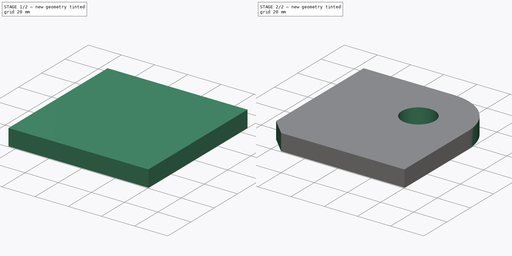
[diagram: build sequence overview — one tinted view per stage of 2, left to right]
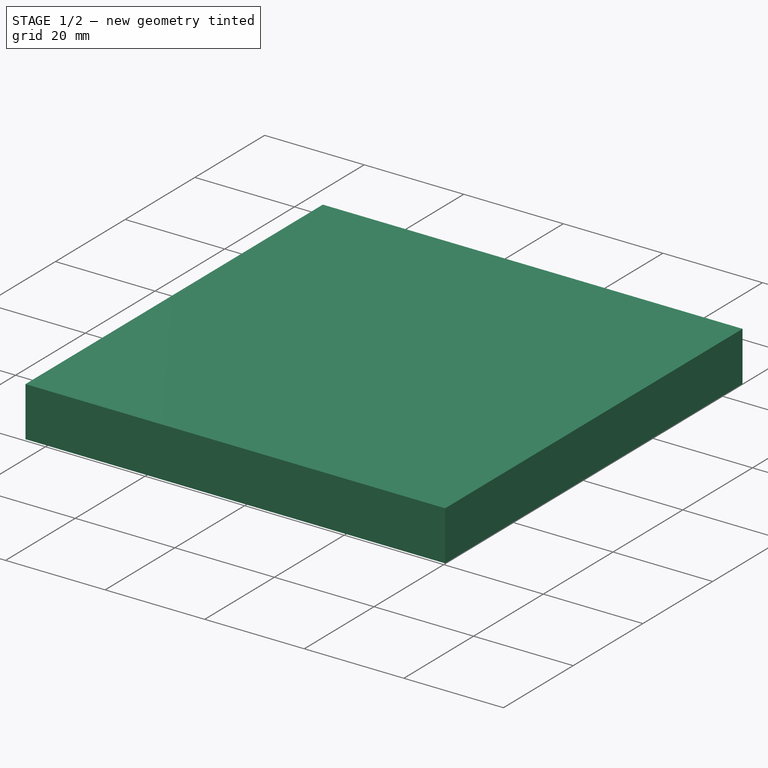
[diagram: stage 1 of 2 — iso view after this stage's code; geometry added in this stage tinted green]
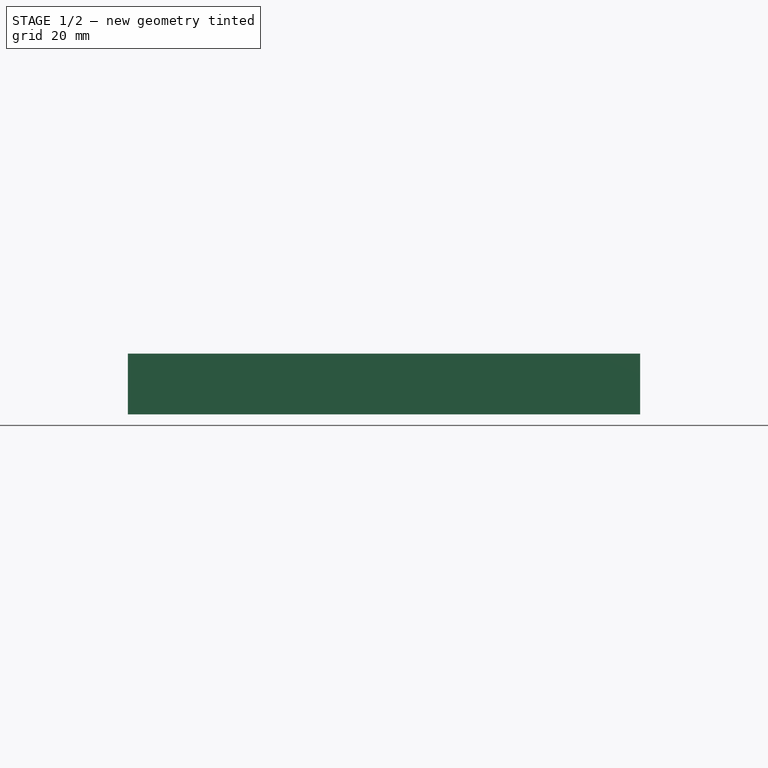
[diagram: stage 1 of 2 — front view after this stage's code; geometry added in this stage tinted green]
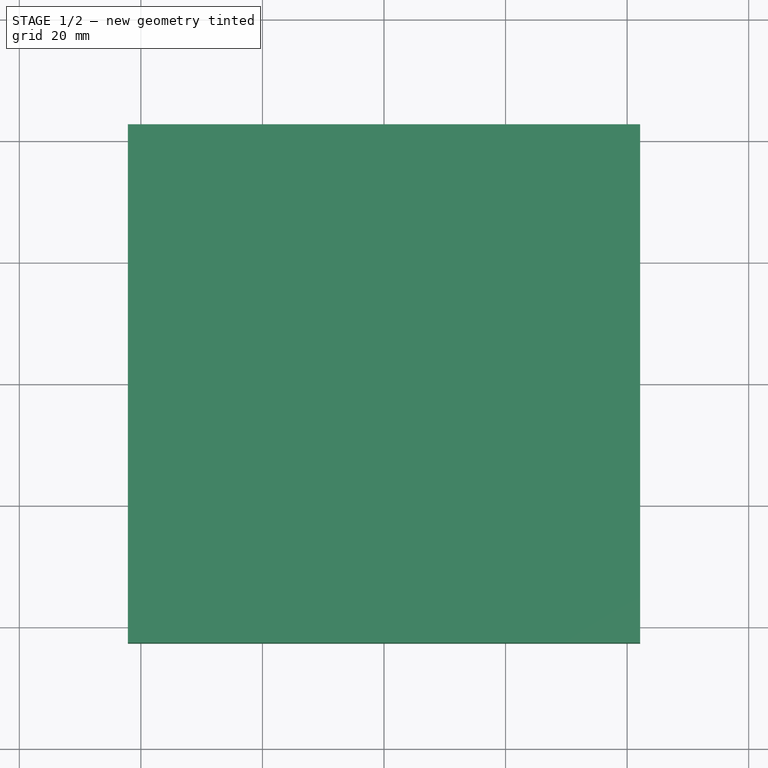
[diagram: stage 1 of 2 — top view after this stage's code; geometry added in this stage tinted green]
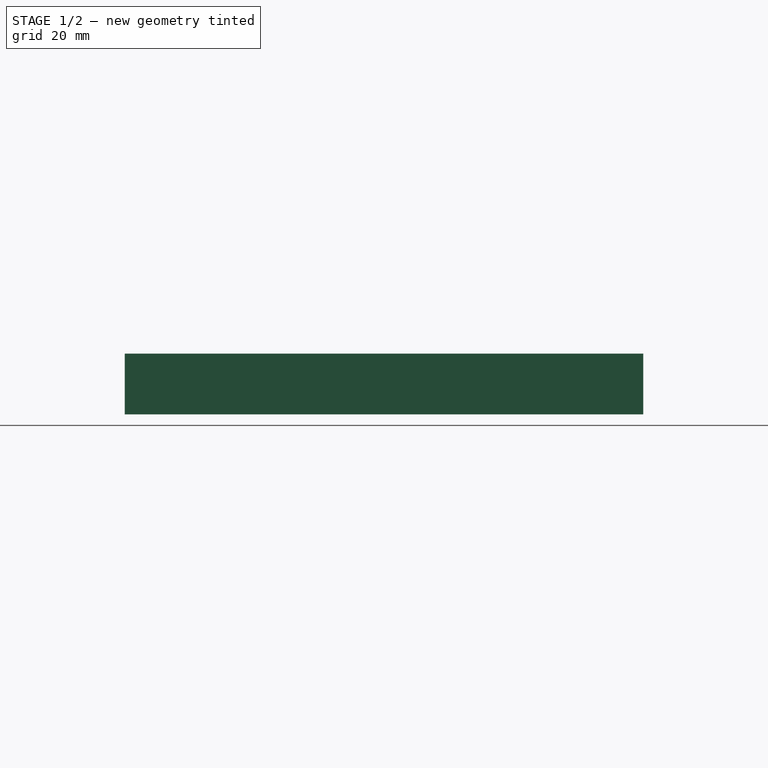
[diagram: stage 1 of 2 — right view after this stage's code; geometry added in this stage tinted green]
FCSTD DOCUMENT  (FreeCAD 0.20R29177 (Git))
Label: YawBearing_Plate_Top
License: All rights reserved
LicenseURL: http://en.wikipedia.org/wiki/All_rights_reserved
objects: Sketcher::SketchObject×2, PartDesign::Pad×1, PartDesign::Pocket×1, PartDesign::Body×1, Spreadsheet::Sheet×1
note: 7 computed .brp shape members not serialized (recipe doc carries the construction recipe); baked Part::Feature solids carry a one-line shape summary decoded from their .brp
EXTERNAL_REF file=../Master_of_Puppets.FCStd obj=Alternator
EXTERNAL_REF file=../Master_of_Puppets.FCStd obj=Spreadsheet
EXTERNAL_REF file=../Master_of_Puppets.FCStd obj=YawBearing

FEATURE [Sketcher::SketchObject] Sketch
  FullyConstrained = true
  MapMode = 5
  Support = -> [XY_Plane001]
  expr: Constraints[14] = Spreadsheet.Width
  expr: Constraints[15] = Spreadsheet.Length
  sketch-geometry (6):
    g0: LineSegment StartX=-42.15 StartY=-42.65 StartZ=0 EndX=42.15 EndY=-42.65 EndZ=0
    g1: LineSegment StartX=42.15 StartY=-42.65 StartZ=0 EndX=42.15 EndY=42.65 EndZ=0
    g2: LineSegment StartX=42.15 StartY=42.65 StartZ=0 EndX=-42.15 EndY=42.65 EndZ=0
    g3: LineSegment StartX=-42.15 StartY=42.65 StartZ=0 EndX=-42.15 EndY=-42.65 EndZ=0
    g4: LineSegment StartX=-42.15 StartY=42.65 StartZ=0 EndX=42.15 EndY=-42.65 EndZ=0
    g5: LineSegment StartX=42.15 StartY=42.65 StartZ=0 EndX=-42.15 EndY=-42.65 EndZ=0
  constraints (16):
    c: Coincident(g0,g1)
    c: Coincident(g1,g2)
    c: Coincident(g2,g3)
    c: Coincident(g3,g0)
    c: Horizontal(g0)
    c: Horizontal(g2)
    c: Vertical(g1)
    c: Vertical(g3)
    c: Coincident(g4,g2)
    c: Coincident(g4,g0)
    c: Coincident(g5,g1)
    c: Coincident(g5,g0)
    c: PointOnObject(g-1,g4)
    c: PointOnObject(g-1,g5)
    c: DistanceX(g0,g0) = 84.3
    c: DistanceY(g1,g1) = 85.3
FEATURE [PartDesign::Pad] Pad
  AllowMultiFace = false
  Direction = (0,0,1)
  Length = 10
  Length2 = 100
  Profile = -> Sketch
  Type = 0
  expr: Length = Spreadsheet.FlatMetalThickness
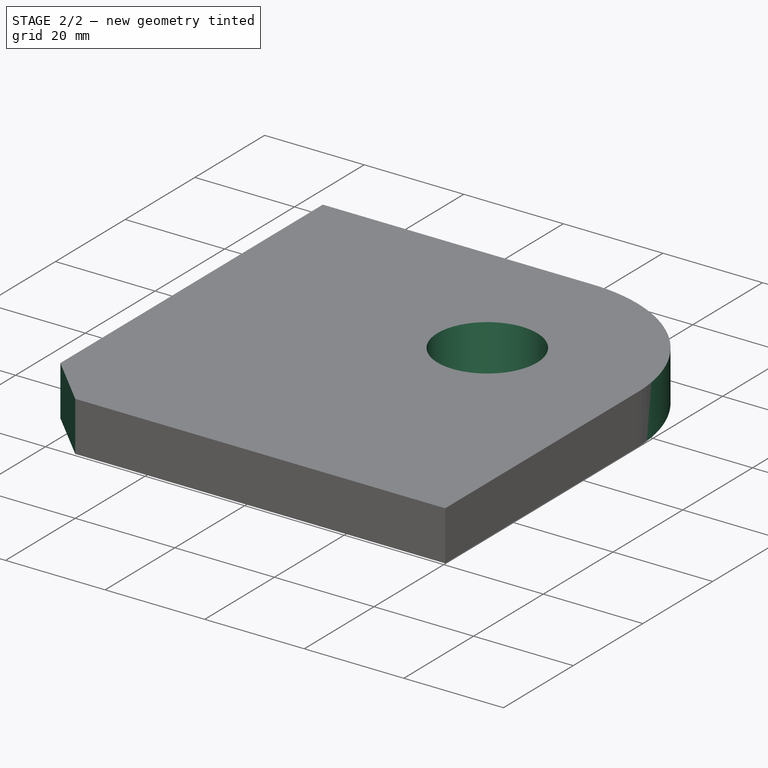
[diagram: stage 2 of 2 — iso view after this stage's code; geometry added in this stage tinted green]
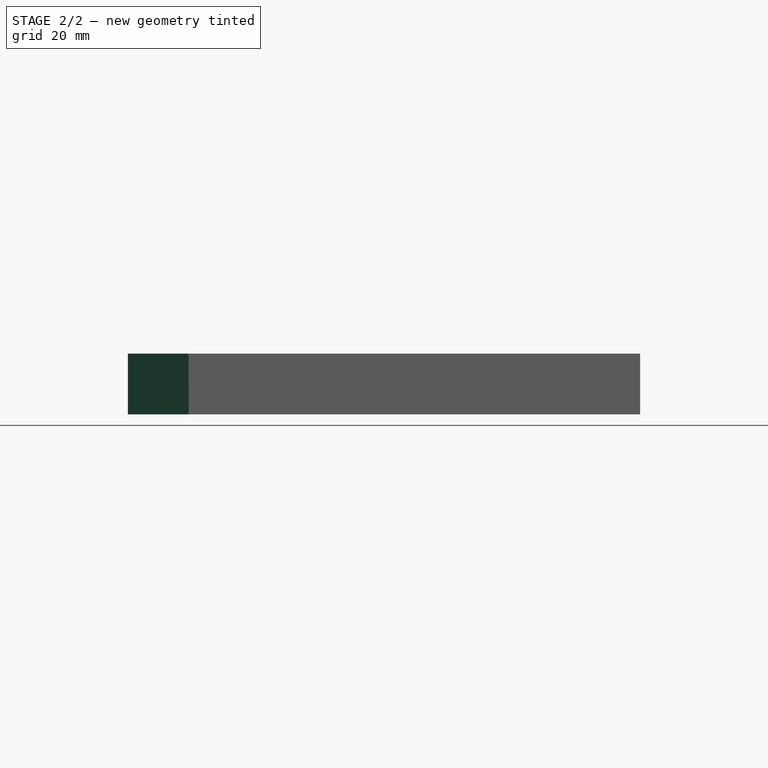
[diagram: stage 2 of 2 — front view after this stage's code; geometry added in this stage tinted green]
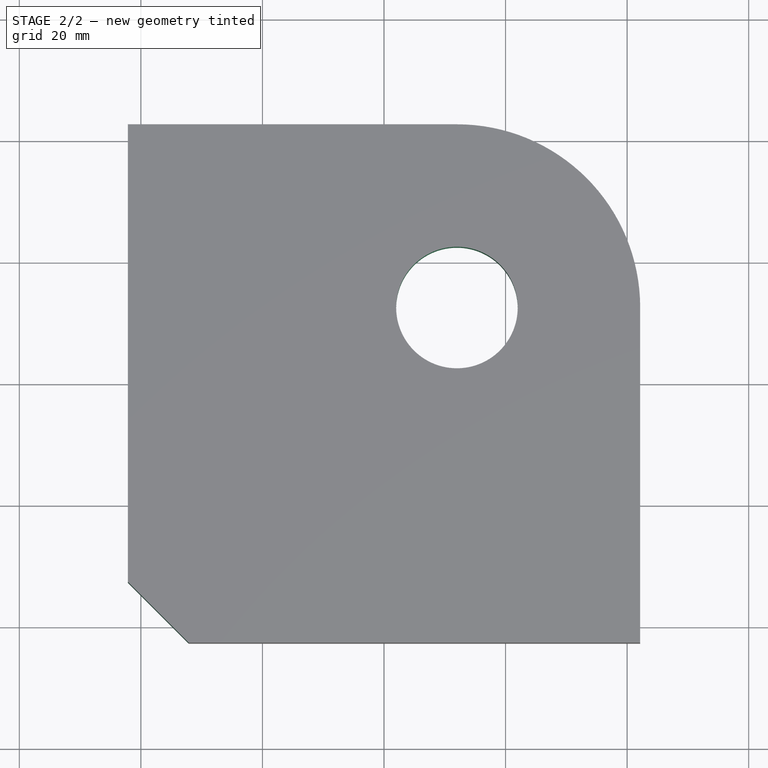
[diagram: stage 2 of 2 — top view after this stage's code; geometry added in this stage tinted green]
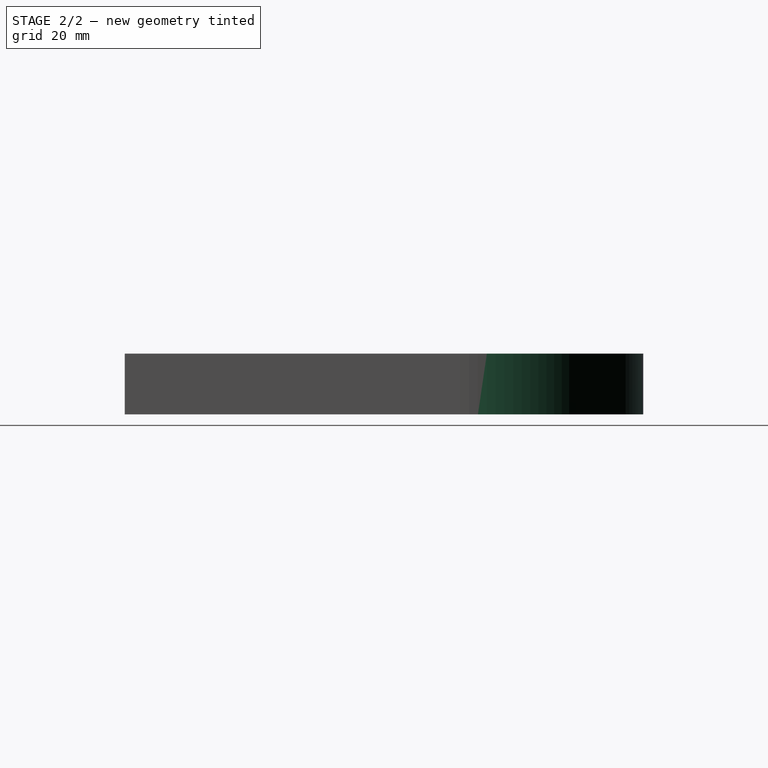
[diagram: stage 2 of 2 — right view after this stage's code; geometry added in this stage tinted green]
FEATURE [Sketcher::SketchObject] Sketch001
  ExternalGeometry = -> [Pad]
  FullyConstrained = true
  MapMode = 5
  Placement = pos=(0,0,10) rot=(0,0,1;0rad)
  Support = -> [Pad]
  expr: Constraints[12] = Spreadsheet.Hole_x
  expr: Constraints[13] = Spreadsheet.Hole_y
  expr: Constraints[15] = Spreadsheet.YawBearingPlateTopHoleRadius
  expr: Constraints[17] = Spreadsheet.YawPipeRadius
  expr: Constraints[18] = Spreadsheet.YawPipeRadius
  expr: Constraints[19] = Spreadsheet.YawPipeRadius
  expr: Constraints[23] = Spreadsheet.Width
  expr: Constraints[25] = Spreadsheet.YawBearingPlateCornerChamferLength
  sketch-geometry (9):
    g0: LineSegment StartX=-42.15 StartY=-32.65 StartZ=0 EndX=-42.15 EndY=-42.65 EndZ=0
    g1: LineSegment StartX=-42.15 StartY=-42.65 StartZ=0 EndX=-32.15 EndY=-42.65 EndZ=0
    g2: LineSegment StartX=-32.15 StartY=-42.65 StartZ=0 EndX=-42.15 EndY=-32.65 EndZ=0
    g3: LineSegment StartX=-42.15 StartY=12.5 StartZ=0 EndX=12 EndY=12.5 EndZ=0
    g4: LineSegment StartX=12 StartY=12.5 StartZ=0 EndX=12 EndY=-42.65 EndZ=0
    g5: Circle CenterX=12 CenterY=12.5 CenterZ=0 NormalX=0 NormalY=0 NormalZ=1 AngleXU=0 Radius=10
    g6: ArcOfCircle CenterX=12 CenterY=12.5 CenterZ=0 NormalX=0 NormalY=0 NormalZ=1 AngleXU=0 Radius=30.15 StartAngle=1.32574e-06 EndAngle=1.57079
    g7: LineSegment StartX=12.0001 StartY=42.65 StartZ=0 EndX=42.15 EndY=84.3 EndZ=0
    g8: LineSegment StartX=42.15 StartY=84.3 StartZ=0 EndX=42.15 EndY=12.5 EndZ=0
  constraints (26):
    c: PointOnObject(g0,g-3)
    c: Coincident(g0,g-4)
    c: Coincident(g0,g1)
    c: PointOnObject(g1,g-4)
    c: Coincident(g1,g2)
    c: Coincident(g2,g0)
    c: Equal(g0,g1)
    c: PointOnObject(g3,g-3)
    c: Horizontal(g3)
    c: Coincident(g3,g4)
    c: PointOnObject(g4,g-4)
    c: Vertical(g4)
    c: Distance(g3) = 54.15
    c: Distance(g4) = 55.15
    c: Coincident(g5,g3)
    c: Radius(g5) = 10
    c: Coincident(g6,g3)
    c: Radius(g6) = 30.15
    c: DistanceY(g3,g6) = 30.15
    c: DistanceX(g3,g6) = 30.15
    c: Coincident(g6,g7)
    c: Coincident(g8,g6)
    c: Vertical(g8)
    c: DistanceY(g-1,g7) = 84.3
    c: Coincident(g7,g8)
    c: Distance(g1) = 10
FEATURE [PartDesign::Pocket] Pocket
  AllowMultiFace = false
  BaseFeature = -> Pad
  Direction = (0,0,-1)
  Length = 5
  Length2 = 100
  Profile = -> Sketch001
  Type = 1
FEATURE [PartDesign::Body] PocketBody  label="YawBearing_Plate_Top"
  Group = -> [Sketch,Pad,Sketch001,Pocket]
  Openafpm_Flat = true
  Origin = -> Origin001
  Tip = -> Pocket
FEATURE [Spreadsheet::Sheet] Spreadsheet
  cells = A1=Inputs; A2=YawPipeDiameter; B2(YawPipeDiameter)==Master_of_Puppets#Spreadsheet.YawPipeDiameter; A3=RotorDiskRadius; B3(RotorDiskRadius)==Master_of_Puppets#Spreadsheet.RotorDiskRadius; A4=FlatMetalThickness; B4(FlatMetalThickness)==Master_of_Puppets#Spreadsheet.FlatMetalThickness; A5=I; B5(I)==Master_of_Puppets#Alternator.I; A6=k; B6(k)==Master_of_Puppets#Alternator.k; A7=YawBearingPlateTopHoleRadius; B7(YawBearingPlateTopHoleRadius)==Master_of_Puppets#YawBearing.YawBearingPlateTopHoleRadius; A8=YawBearingPlateCornerChamferLength; B8(YawBearingPlateCornerChamferLength)==Master_of_Puppets#YawBearing.YawBearingPlateCornerChamferLength; A9=Calculated; A10=YawPipeRadius; B10(YawPipeRadius)==YawPipeDiameter / 2; A11=Hole_x; B11(Hole_x)==YawPipeRadius + I; A12=Hole_y; B12(Hole_y)==YawPipeRadius + k; A13=Width; B13(Width)==Hole_x + YawPipeRadius; A14=Length; B14(Length)==Hole_y + YawPipeRadius
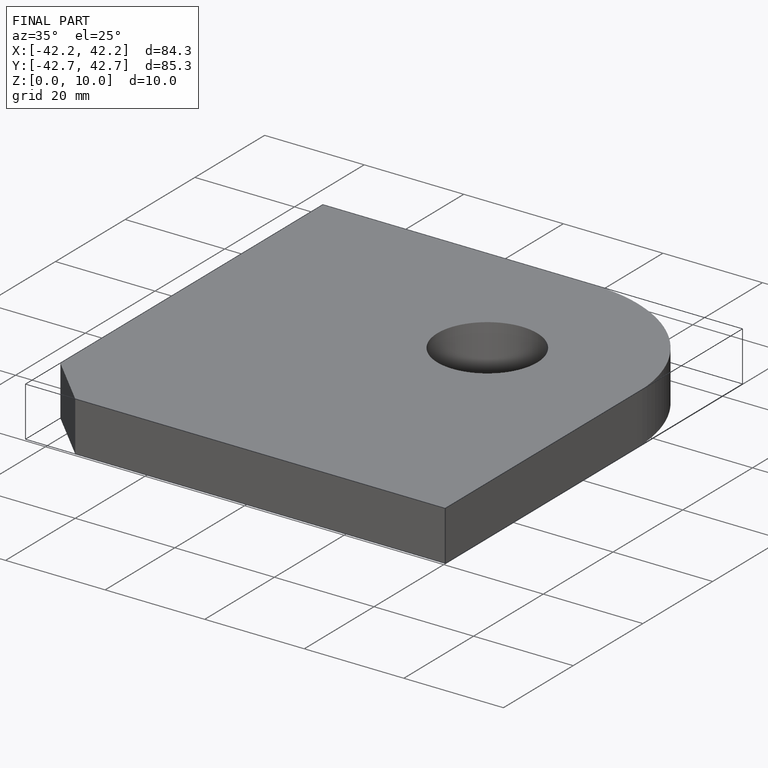
[diagram: finished part — iso view with bounding-box wireframe]
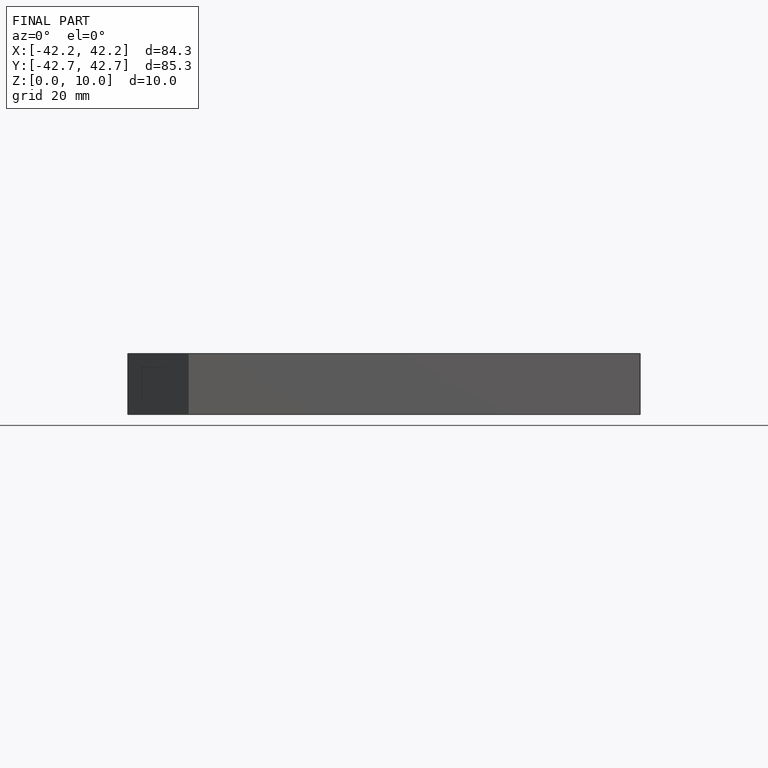
[diagram: finished part — front view with bounding-box wireframe]
